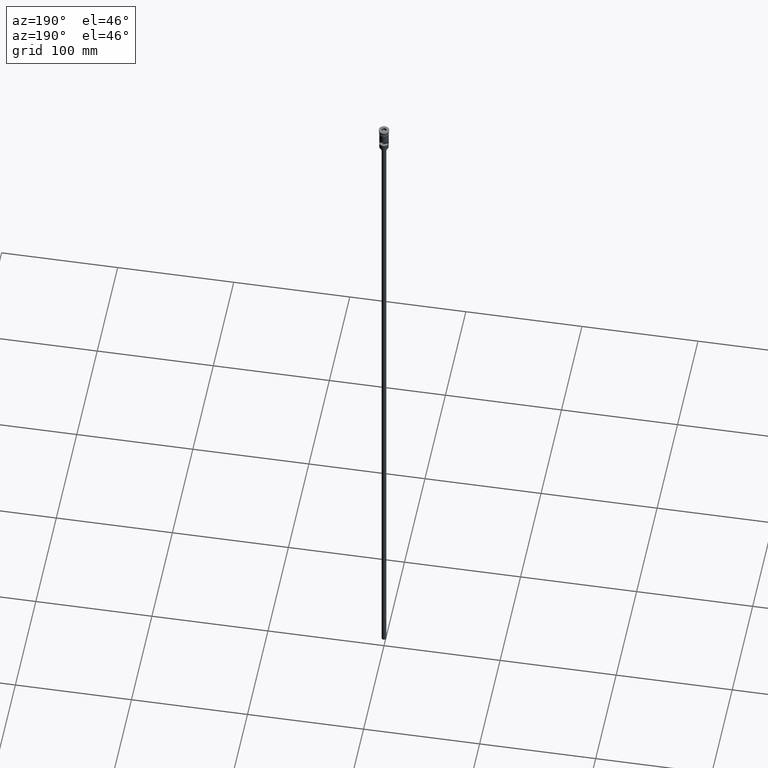
[diagram: clean part render]
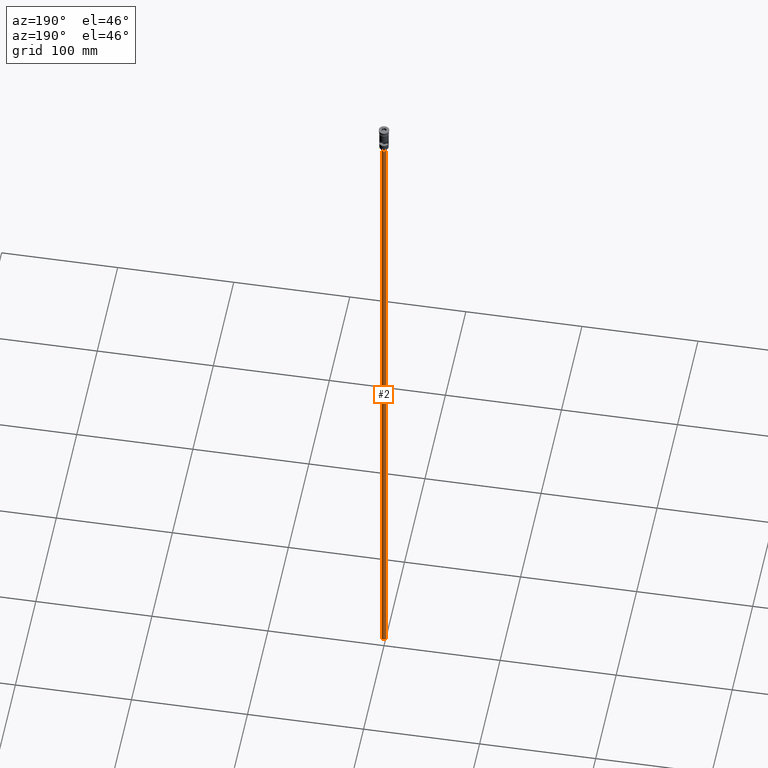
[diagram: same view with one face highlighted and labeled with its STEP entity id]
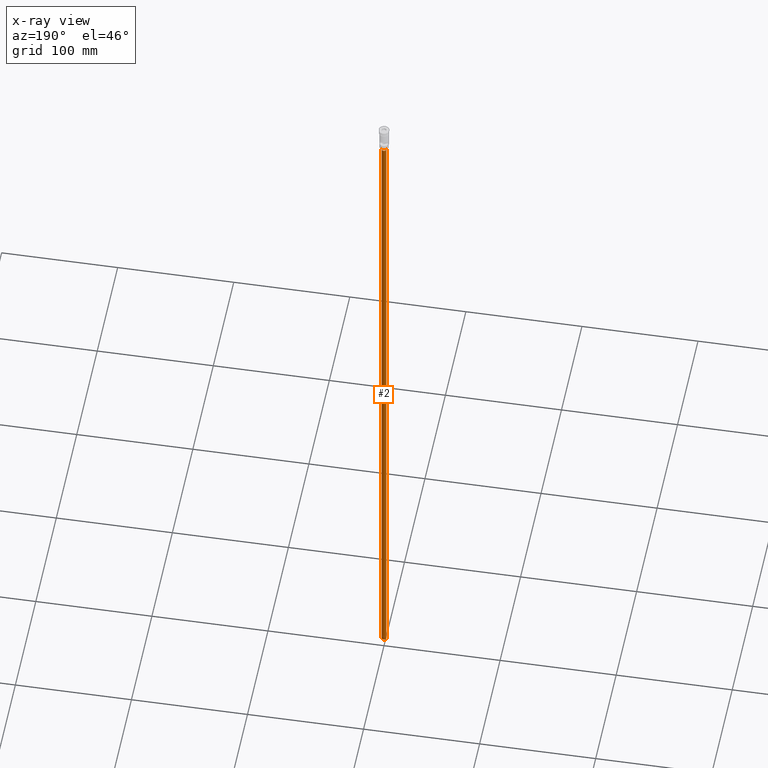
[diagram: x-ray of the same camera — body ghosted, the highlighted face saturated]
A machine part, auxiliary view. The second image highlights one B-rep face of the part: STEP entity #2.
The next image is the same camera in x-ray: the body ghosted, the highlighted face saturated — about 0% of this face is hidden behind the body in this view.
In plain terms, the highlighted cylindrical surface (edge-blend (fillet) strip) has radius 2 mm, axis along (-0, -0, 1).
Its self-contained STEP definition (entity closure, byte-faithful):
#2 = ADVANCED_FACE ( 'NONE', ( #597 ), #603, .T. ) ;
#82 = VECTOR ( 'NONE', #1494, 1000.000000000000000 ) ;
#99 = VERTEX_POINT ( 'NONE', #128 ) ;
#119 = CARTESIAN_POINT ( 'NONE',  ( 0.000000000000000000, 0.000000000000000000, -23.49999999999999645 ) ) ;
#127 = EDGE_CURVE ( 'NONE', #99, #950, #718, .T. ) ;
#128 = CARTESIAN_POINT ( 'NONE',  ( -2.000000000000000000, 2.449293598294706414E-16, -620.4999999999998863 ) ) ;
#137 = LINE ( 'NONE', #890, #82 ) ;
#139 = EDGE_CURVE ( 'NONE', #99, #351, #137, .T. ) ;
#191 = EDGE_LOOP ( 'NONE', ( #1253, #325, #814, #449 ) ) ;
#240 = CIRCLE ( 'NONE', #743, 2.000000000000000000 ) ;
#253 = DIRECTION ( 'NONE',  ( -1.000000000000000000, 0.000000000000000000, 0.000000000000000000 ) ) ;
#325 = ORIENTED_EDGE ( 'NONE', *, *, #139, .T. ) ;
#351 = VERTEX_POINT ( 'NONE', #673 ) ;
#385 = EDGE_CURVE ( 'NONE', #950, #479, #907, .T. ) ;
#449 = ORIENTED_EDGE ( 'NONE', *, *, #385, .F. ) ;
#478 = DIRECTION ( 'NONE',  ( -0.000000000000000000, -0.000000000000000000, 1.000000000000000000 ) ) ;
#479 = VERTEX_POINT ( 'NONE', #711 ) ;
#506 = DIRECTION ( 'NONE',  ( 0.000000000000000000, 0.000000000000000000, -1.000000000000000000 ) ) ;
#540 = EDGE_CURVE ( 'NONE', #351, #479, #240, .T. ) ;
#597 = FACE_OUTER_BOUND ( 'NONE', #191, .T. ) ;
#603 = CYLINDRICAL_SURFACE ( 'NONE', #1372, 2.000000000000000000 ) ;
#629 = DIRECTION ( 'NONE',  ( -1.000000000000000000, 0.000000000000000000, 0.000000000000000000 ) ) ;
#673 = CARTESIAN_POINT ( 'NONE',  ( -2.000000000000000000, 2.449293598294706414E-16, -23.49999999999999645 ) ) ;
#706 = DIRECTION ( 'NONE',  ( -0.000000000000000000, -0.000000000000000000, 1.000000000000000000 ) ) ;
#711 = CARTESIAN_POINT ( 'NONE',  ( 2.000000000000000000, 0.000000000000000000, -23.49999999999999645 ) ) ;
#718 = CIRCLE ( 'NONE', #1325, 2.000000000000000000 ) ;
#740 = CARTESIAN_POINT ( 'NONE',  ( 0.000000000000000000, 0.000000000000000000, -620.4999999999998863 ) ) ;
#743 = AXIS2_PLACEMENT_3D ( 'NONE', #119, #506, #253 ) ;
#806 = CARTESIAN_POINT ( 'NONE',  ( 2.000000000000000000, 0.000000000000000000, -620.4999999999998863 ) ) ;
#814 = ORIENTED_EDGE ( 'NONE', *, *, #540, .T. ) ;
#830 = DIRECTION ( 'NONE',  ( 1.000000000000000000, 0.000000000000000000, 0.000000000000000000 ) ) ;
#890 = CARTESIAN_POINT ( 'NONE',  ( -2.000000000000000000, 2.449293598294706414E-16, -620.4999999999998863 ) ) ;
#907 = LINE ( 'NONE', #1550, #1054 ) ;
#950 = VERTEX_POINT ( 'NONE', #806 ) ;
#999 = DIRECTION ( 'NONE',  ( 0.000000000000000000, 0.000000000000000000, -1.000000000000000000 ) ) ;
#1054 = VECTOR ( 'NONE', #478, 1000.000000000000000 ) ;
#1253 = ORIENTED_EDGE ( 'NONE', *, *, #127, .F. ) ;
#1325 = AXIS2_PLACEMENT_3D ( 'NONE', #740, #999, #629 ) ;
#1372 = AXIS2_PLACEMENT_3D ( 'NONE', #1576, #706, #830 ) ;
#1494 = DIRECTION ( 'NONE',  ( -0.000000000000000000, -0.000000000000000000, 1.000000000000000000 ) ) ;
#1550 = CARTESIAN_POINT ( 'NONE',  ( 2.000000000000000000, 0.000000000000000000, -620.4999999999998863 ) ) ;
#1576 = CARTESIAN_POINT ( 'NONE',  ( 0.000000000000000000, 0.000000000000000000, -620.4999999999998863 ) ) ;